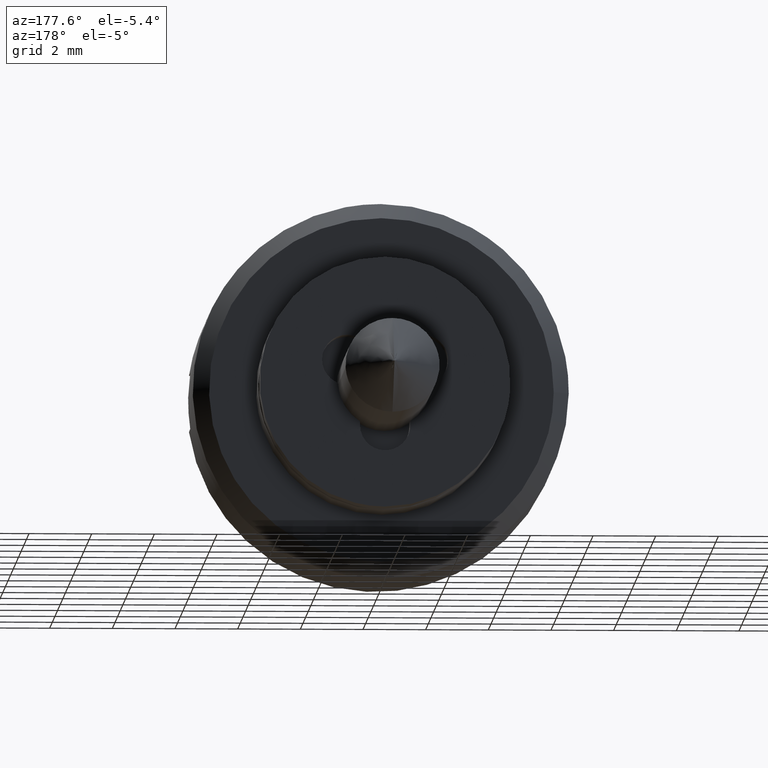
[diagram: clean part render]
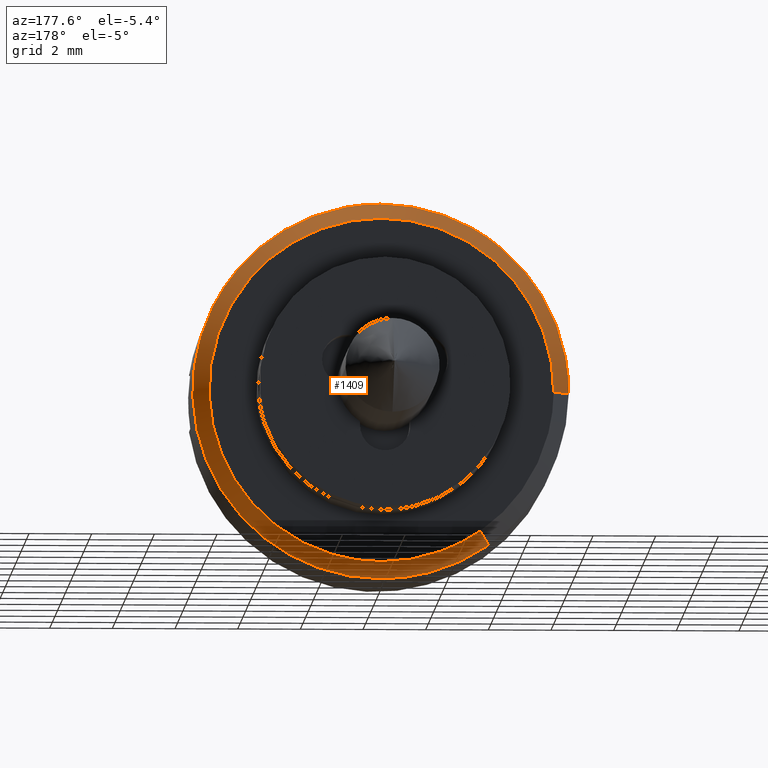
[diagram: same view with one face highlighted and labeled with its STEP entity id]
A machine part, auxiliary view. The second image highlights one B-rep face of the part: STEP entity #1409.
In plain terms, the highlighted face is a freeform B-spline surface patch.
Its self-contained STEP definition (entity closure, byte-faithful):
#1239=CARTESIAN_POINT('',(-1.987500000000029,3.149740341526082,-4.493527793500559));
#1240=CARTESIAN_POINT('',(-1.987500000000029,1.710116304610929,-5.502632914038757));
#1241=CARTESIAN_POINT('',(-1.987500000000029,-0.047886863547327,-5.487291052814504));
#1242=CARTESIAN_POINT('',(-1.987500000000029,-5.535177916361994,-5.439404189267178));
#1243=CARTESIAN_POINT('',(-1.987500000000029,-5.487291052814667,0.047886863547490));
#1244=CARTESIAN_POINT('',(-1.987500000000029,-5.439404189267340,5.535177916362159));
#1245=CARTESIAN_POINT('',(-1.987500000000029,0.047886863547327,5.487291052814831));
#1246=CARTESIAN_POINT('',(-1.987500000000029,5.535177916361994,5.439404189267504));
#1247=CARTESIAN_POINT('',(-1.987500000000029,5.487291052814667,-0.047886863547164));
#1248=CARTESIAN_POINT('',(-2.512812500000062,3.451261612260994,-4.923688398333947));
#1249=CARTESIAN_POINT('',(-2.512812500000062,1.873823907575099,-6.029394071698150));
#1250=CARTESIAN_POINT('',(-2.512812500000061,-0.052471021726316,-6.012583550524125));
#1251=CARTESIAN_POINT('',(-2.512812500000061,-6.065054572250604,-5.960112528797809));
#1252=CARTESIAN_POINT('',(-2.512812500000061,-6.012583550524289,0.052471021726480));
#1253=CARTESIAN_POINT('',(-2.512812500000061,-5.960112528797971,6.065054572250768));
#1254=CARTESIAN_POINT('',(-2.512812500000061,0.052471021726316,6.012583550524452));
#1255=CARTESIAN_POINT('',(-2.512812500000061,6.065054572250604,5.960112528798137));
#1256=CARTESIAN_POINT('',(-2.512812500000061,6.012583550524289,-0.052471021726153));
#1264=(BOUNDED_SURFACE()B_SPLINE_SURFACE(2,1,((#1239,#1248),(#1240,#1249),(#1241,#1250),(#1242,#1251),(#1243,#1252),(#1244,#1253),(#1245,#1254),(#1246,#1255),(#1247,#1256)),.UNSPECIFIED.,.F.,.F.,.U.)B_SPLINE_SURFACE_WITH_KNOTS((3,2,2,2,3),(2,2),(0.0,3.984941576810362,13.947295518836270,23.909649460862170,33.872003402888083),(0.0,1.0),.UNSPECIFIED.)GEOMETRIC_REPRESENTATION_ITEM()RATIONAL_B_SPLINE_SURFACE(((0.859411254969543,0.859411254969543),(0.882842712474619,0.882842712474619),(1.0,1.0),(0.707106781186548,0.707106781186548),(1.0,1.0),(0.707106781186548,0.707106781186548),(1.0,1.0),(0.707106781186548,0.707106781186548),(1.0,1.0)))REPRESENTATION_ITEM('')SURFACE());
#1265=CARTESIAN_POINT('',(-2.500000000000116,3.443907434927128,-4.913196676264112));
#1266=VERTEX_POINT('',#1265);
#1267=CARTESIAN_POINT('',(-2.500000000000060,0.0,-5.999999999999838));
#1268=VERTEX_POINT('',#1267);
#1269=CARTESIAN_POINT('',(-2.500000000000116,3.443907434927128,-4.913196676264112));
#1270=CARTESIAN_POINT('',(-2.500000000000059,1.893436471690538,-5.999999999999838));
#1271=CARTESIAN_POINT('',(-2.500000000000060,0.0,-5.999999999999838));
#1279=(BOUNDED_CURVE()B_SPLINE_CURVE(2,(#1269,#1270,#1271),.UNSPECIFIED.,.F.,.U.)B_SPLINE_CURVE_WITH_KNOTS((3,3),(0.901326273797060,1.0),.UNSPECIFIED.)CURVE()GEOMETRIC_REPRESENTATION_ITEM()RATIONAL_B_SPLINE_CURVE((0.860049271925838,0.884396538880414,1.0))REPRESENTATION_ITEM(''));
#1280=EDGE_CURVE('',#1266,#1268,#1279,.T.);
#1281=ORIENTED_EDGE('',*,*,#1280,.F.);
#1282=CARTESIAN_POINT('',(-2.000000000000234,3.156915148686318,-4.503763619906774));
#1283=VERTEX_POINT('',#1282);
#1284=CARTESIAN_POINT('',(-2.000000000000234,3.156915148686318,-4.503763619906774));
#1285=CARTESIAN_POINT('',(-2.500000000000116,3.443907434927128,-4.913196676264112));
#1286=QUASI_UNIFORM_CURVE('',1,(#1284,#1285),.UNSPECIFIED.,.F.,.U.);
#1287=EDGE_CURVE('',#1283,#1266,#1286,.T.);
#1288=ORIENTED_EDGE('',*,*,#1287,.F.);
#1289=CARTESIAN_POINT('',(-2.000000000000030,0.0,-5.499999999999837));
#1290=VERTEX_POINT('',#1289);
#1291=CARTESIAN_POINT('',(-2.000000000000030,0.0,-5.499999999999837));
#1292=CARTESIAN_POINT('',(-2.000000000000030,1.735650099053719,-5.499999999999836));
#1293=CARTESIAN_POINT('',(-2.000000000000234,3.156915148686318,-4.503763619906774));
#1301=(BOUNDED_CURVE()B_SPLINE_CURVE(2,(#1291,#1292,#1293),.UNSPECIFIED.,.F.,.U.)B_SPLINE_CURVE_WITH_KNOTS((3,3),(0.0,0.098673726203145),.UNSPECIFIED.)CURVE()GEOMETRIC_REPRESENTATION_ITEM()RATIONAL_B_SPLINE_CURVE((1.0,0.884396538880175,0.860049271925738))REPRESENTATION_ITEM(''));
#1302=EDGE_CURVE('',#1290,#1283,#1301,.T.);
#1303=ORIENTED_EDGE('',*,*,#1302,.F.);
#1304=CARTESIAN_POINT('',(-2.000000000000030,0.0,5.500000000000163));
#1305=VERTEX_POINT('',#1304);
#1306=CARTESIAN_POINT('',(-2.000000000000030,0.0,5.500000000000163));
#1307=CARTESIAN_POINT('',(-2.000000000000029,-5.500000000000001,5.500000000000163));
#1308=CARTESIAN_POINT('',(-2.000000000000030,-5.500000000000000,1.634248E-013));
#1309=CARTESIAN_POINT('',(-2.000000000000029,-5.500000000000001,-5.499999999999837));
#1310=CARTESIAN_POINT('',(-2.000000000000030,0.0,-5.499999999999837));
#1318=(BOUNDED_CURVE()B_SPLINE_CURVE(2,(#1306,#1307,#1308,#1309,#1310),.UNSPECIFIED.,.F.,.U.)B_SPLINE_CURVE_WITH_KNOTS((3,2,3),(0.500000000000000,0.750000000000000,1.0),.UNSPECIFIED.)CURVE()GEOMETRIC_REPRESENTATION_ITEM()RATIONAL_B_SPLINE_CURVE((1.0,0.707106781186548,1.0,0.707106781186548,1.0))REPRESENTATION_ITEM(''));
#1319=EDGE_CURVE('',#1305,#1290,#1318,.T.);
#1320=ORIENTED_EDGE('',*,*,#1319,.F.);
#1321=CARTESIAN_POINT('',(-2.000000000002476,5.499790576855245,-0.047995945258940));
#1322=VERTEX_POINT('',#1321);
#1323=CARTESIAN_POINT('',(-2.000000000002477,5.499790576855245,-0.047995945258940));
#1324=CARTESIAN_POINT('',(-2.000000000000030,5.500000000000000,-0.023998429531722));
#1325=CARTESIAN_POINT('',(-2.000000000000030,5.500000000000000,1.634248E-013));
#1326=CARTESIAN_POINT('',(-2.000000000000029,5.500000000000001,5.500000000000163));
#1327=CARTESIAN_POINT('',(-2.000000000000030,0.0,5.500000000000163));
#1335=(BOUNDED_CURVE()B_SPLINE_CURVE(2,(#1323,#1324,#1325,#1326,#1327),.UNSPECIFIED.,.F.,.U.)B_SPLINE_CURVE_WITH_KNOTS((3,2,3),(0.248460105663858,0.250000000000000,0.500000000000000),.UNSPECIFIED.)CURVE()GEOMETRIC_REPRESENTATION_ITEM()RATIONAL_B_SPLINE_CURVE((0.996414028097734,0.998195901565019,1.0,0.707106781186548,1.0))REPRESENTATION_ITEM(''));
#1336=EDGE_CURVE('',#1322,#1305,#1335,.T.);
#1337=ORIENTED_EDGE('',*,*,#1336,.F.);
#1338=CARTESIAN_POINT('',(-2.500000000002870,5.999771538387658,-0.052359213010766));
#1339=VERTEX_POINT('',#1338);
#1340=CARTESIAN_POINT('',(-2.000000000002476,5.499790576855245,-0.047995945258940));
#1341=CARTESIAN_POINT('',(-2.500000000002870,5.999771538387658,-0.052359213010766));
#1342=QUASI_UNIFORM_CURVE('',1,(#1340,#1341),.UNSPECIFIED.,.F.,.U.);
#1343=EDGE_CURVE('',#1322,#1339,#1342,.T.);
#1344=ORIENTED_EDGE('',*,*,#1343,.T.);
#1345=CARTESIAN_POINT('',(-2.500000000000060,3.896687813416691,4.562436200624721));
#1346=VERTEX_POINT('',#1345);
#1347=CARTESIAN_POINT('',(-2.500000000000061,3.896687813416691,4.562436200624722));
#1348=CARTESIAN_POINT('',(-2.500000000000060,6.0,2.766038646483292));
#1349=CARTESIAN_POINT('',(-2.500000000000060,6.0,1.634248E-013));
#1350=CARTESIAN_POINT('',(-2.500000000000060,6.0,-0.026180104944699));
#1351=CARTESIAN_POINT('',(-2.500000000002870,5.999771538387658,-0.052359213010766));
#1359=(BOUNDED_CURVE()B_SPLINE_CURVE(2,(#1347,#1348,#1349,#1350,#1351),.UNSPECIFIED.,.F.,.U.)B_SPLINE_CURVE_WITH_KNOTS((3,2,3),(0.613143129778950,0.750000000000000,0.751539894336200),.UNSPECIFIED.)CURVE()GEOMETRIC_REPRESENTATION_ITEM()RATIONAL_B_SPLINE_CURVE((0.854871038655955,0.839662203056887,1.0,0.998195901564951,0.996414028097599))REPRESENTATION_ITEM(''));
#1360=EDGE_CURVE('',#1346,#1339,#1359,.T.);
#1361=ORIENTED_EDGE('',*,*,#1360,.F.);
#1362=CARTESIAN_POINT('',(-2.500000000000060,0.0,6.000000000000163));
#1363=VERTEX_POINT('',#1362);
#1364=CARTESIAN_POINT('',(-2.500000000000060,0.0,6.000000000000163));
#1365=CARTESIAN_POINT('',(-2.500000000000060,2.213516150637296,6.000000000000163));
#1366=CARTESIAN_POINT('',(-2.500000000000060,3.896687813416691,4.562436200624721));
#1374=(BOUNDED_CURVE()B_SPLINE_CURVE(2,(#1364,#1365,#1366),.UNSPECIFIED.,.F.,.U.)B_SPLINE_CURVE_WITH_KNOTS((3,3),(0.500000000000000,0.613143129778950),.UNSPECIFIED.)CURVE()GEOMETRIC_REPRESENTATION_ITEM()RATIONAL_B_SPLINE_CURVE((1.0,0.867444578129661,0.854871038655955))REPRESENTATION_ITEM(''));
#1375=EDGE_CURVE('',#1363,#1346,#1374,.T.);
#1376=ORIENTED_EDGE('',*,*,#1375,.F.);
#1377=CARTESIAN_POINT('',(-2.500000000000060,-4.562436147986986,3.896687875047556));
#1378=VERTEX_POINT('',#1377);
#1379=CARTESIAN_POINT('',(-2.500000000000059,-4.562436147986987,3.896687875047557));
#1380=CARTESIAN_POINT('',(-2.500000000000061,-2.766038548208157,6.000000000000165));
#1381=CARTESIAN_POINT('',(-2.500000000000060,0.0,6.000000000000163));
#1389=(BOUNDED_CURVE()B_SPLINE_CURVE(2,(#1379,#1380,#1381),.UNSPECIFIED.,.F.,.U.)B_SPLINE_CURVE_WITH_KNOTS((3,3),(0.363143133861730,0.500000000000000),.UNSPECIFIED.)CURVE()GEOMETRIC_REPRESENTATION_ITEM()RATIONAL_B_SPLINE_CURVE((0.854871037748521,0.839662207840161,1.0))REPRESENTATION_ITEM(''));
#1390=EDGE_CURVE('',#1378,#1363,#1389,.T.);
#1391=ORIENTED_EDGE('',*,*,#1390,.F.);
#1392=CARTESIAN_POINT('',(-2.500000000000060,0.0,-5.999999999999838));
#1393=CARTESIAN_POINT('',(-2.500000000000060,-6.0,-5.999999999999838));
#1394=CARTESIAN_POINT('',(-2.500000000000060,-6.0,1.634248E-013));
#1395=CARTESIAN_POINT('',(-2.500000000000060,-6.0,2.213516242718186));
#1396=CARTESIAN_POINT('',(-2.500000000000059,-4.562436147986987,3.896687875047557));
#1404=(BOUNDED_CURVE()B_SPLINE_CURVE(2,(#1392,#1393,#1394,#1395,#1396),.UNSPECIFIED.,.F.,.U.)B_SPLINE_CURVE_WITH_KNOTS((3,2,3),(0.0,0.250000000000000,0.363143133861730),.UNSPECIFIED.)CURVE()GEOMETRIC_REPRESENTATION_ITEM()RATIONAL_B_SPLINE_CURVE((1.0,0.707106781186548,1.0,0.867444573346387,0.854871037748521))REPRESENTATION_ITEM(''));
#1405=EDGE_CURVE('',#1268,#1378,#1404,.T.);
#1406=ORIENTED_EDGE('',*,*,#1405,.F.);
#1407=EDGE_LOOP('',(#1281,#1288,#1303,#1320,#1337,#1344,#1361,#1376,#1391,#1406));
#1408=FACE_OUTER_BOUND('',#1407,.T.);
#1409=ADVANCED_FACE('',(#1408),#1264,.T.);